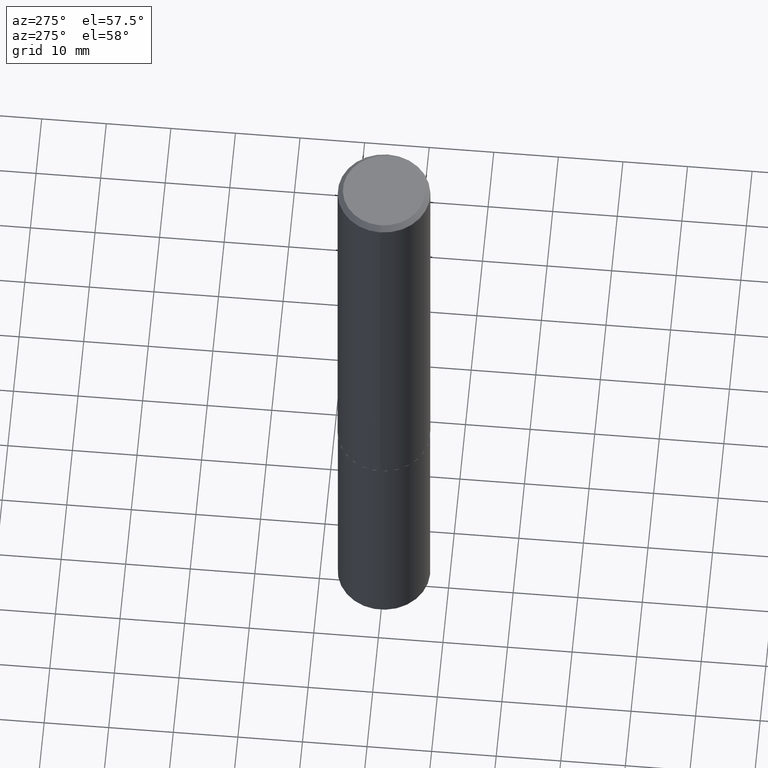
[diagram: clean part render]
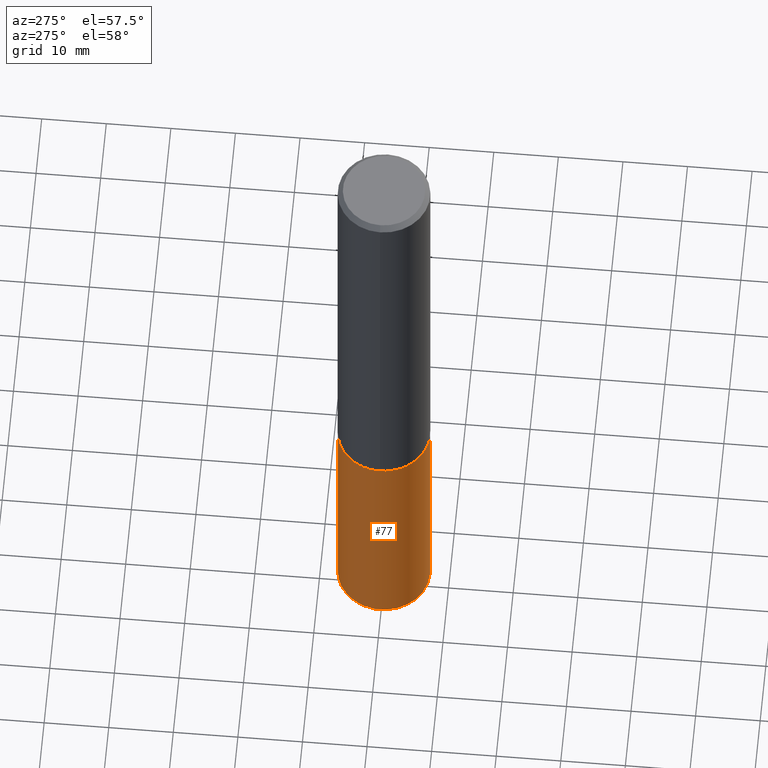
[diagram: same view with one face highlighted and labeled with its STEP entity id]
A machine part, auxiliary view. The second image highlights one B-rep face of the part: STEP entity #77.
In plain terms, the highlighted cylindrical surface (partial cylindrical patch) has radius 7.1501 mm, axis along (-0, 0, 1).
Its self-contained STEP definition (entity closure, byte-faithful):
#2 = CARTESIAN_POINT ( 'NONE',  ( 1.050222486221045995E-28, -1.499514380840898218E-14, -4.294672302330639901 ) ) ;
#7 = DIRECTION ( 'NONE',  ( -2.445301347483331542E-29, 3.491721149235287761E-15, 1.000000000000000000 ) ) ;
#15 = VERTEX_POINT ( 'NONE', #265 ) ;
#18 = FACE_OUTER_BOUND ( 'NONE', #88, .T. ) ;
#19 = CIRCLE ( 'NONE', #100, 0.2814999999999999725 ) ;
#39 = EDGE_CURVE ( 'NONE', #146, #83, #342, .T. ) ;
#47 = CARTESIAN_POINT ( 'NONE',  ( 2.000177801164748486E-15, 0.2814999999999904801, -2.728400000000001491 ) ) ;
#48 = CARTESIAN_POINT ( 'NONE',  ( -1.965703993768616963E-15, -0.2815000000000095204, -2.728399999999999270 ) ) ;
#77 = ADVANCED_FACE ( 'NONE', ( #18 ), #340, .T. ) ;
#83 = VERTEX_POINT ( 'NONE', #320 ) ;
#88 = EDGE_LOOP ( 'NONE', ( #114, #170, #389, #220 ) ) ;
#100 = AXIS2_PLACEMENT_3D ( 'NONE', #333, #374, #367 ) ;
#114 = ORIENTED_EDGE ( 'NONE', *, *, #136, .F. ) ;
#116 = AXIS2_PLACEMENT_3D ( 'NONE', #2, #7, #358 ) ;
#125 = DIRECTION ( 'NONE',  ( -2.445301347483331542E-29, 3.491721149235287367E-15, 1.000000000000000000 ) ) ;
#131 = DIRECTION ( 'NONE',  ( -2.445301347483331542E-29, 3.491721149235287761E-15, 1.000000000000000000 ) ) ;
#136 = EDGE_CURVE ( 'NONE', #146, #15, #258, .T. ) ;
#137 = VERTEX_POINT ( 'NONE', #48 ) ;
#146 = VERTEX_POINT ( 'NONE', #376 ) ;
#158 = DIRECTION ( 'NONE',  ( -6.982962677686265922E-15, -1.000000000000000000, 3.881844395970533976E-15 ) ) ;
#170 = ORIENTED_EDGE ( 'NONE', *, *, #39, .T. ) ;
#220 = ORIENTED_EDGE ( 'NONE', *, *, #279, .F. ) ;
#235 = CARTESIAN_POINT ( 'NONE',  ( -1.965703993768616963E-15, -0.2815000000000095204, -2.728399999999999270 ) ) ;
#249 = EDGE_CURVE ( 'NONE', #83, #137, #273, .T. ) ;
#258 = LINE ( 'NONE', #47, #372 ) ;
#262 = VECTOR ( 'NONE', #125, 39.37007874015748143 ) ;
#265 = CARTESIAN_POINT ( 'NONE',  ( 2.000177801164787141E-15, 0.2814999999999904801, -2.728400000000001491 ) ) ;
#273 = LINE ( 'NONE', #235, #262 ) ;
#279 = EDGE_CURVE ( 'NONE', #15, #137, #19, .T. ) ;
#311 = CARTESIAN_POINT ( 'NONE',  ( 6.672217090795527604E-29, -9.526157684899640905E-15, -2.728400000000000158 ) ) ;
#318 = AXIS2_PLACEMENT_3D ( 'NONE', #311, #131, #158 ) ;
#320 = CARTESIAN_POINT ( 'NONE',  ( -1.965703993768577914E-15, -0.2815000000000149050, -4.294672302330639013 ) ) ;
#333 = CARTESIAN_POINT ( 'NONE',  ( 6.672217090795527604E-29, -9.526157684899640905E-15, -2.728400000000000158 ) ) ;
#340 = CYLINDRICAL_SURFACE ( 'NONE', #318, 0.2814999999999999725 ) ;
#342 = CIRCLE ( 'NONE', #116, 0.2814999999999999725 ) ;
#358 = DIRECTION ( 'NONE',  ( -6.982962677686265922E-15, -1.000000000000000000, 3.881844395970533976E-15 ) ) ;
#367 = DIRECTION ( 'NONE',  ( -6.982962677686265922E-15, -1.000000000000000000, 3.881844395970533976E-15 ) ) ;
#372 = VECTOR ( 'NONE', #382, 39.37007874015748143 ) ;
#374 = DIRECTION ( 'NONE',  ( -2.445301347483331542E-29, 3.491721149235287761E-15, 1.000000000000000000 ) ) ;
#376 = CARTESIAN_POINT ( 'NONE',  ( 2.000177801164786352E-15, 0.2814999999999848734, -4.294672302330640790 ) ) ;
#382 = DIRECTION ( 'NONE',  ( -2.445301347483331542E-29, 3.491721149235287367E-15, 1.000000000000000000 ) ) ;
#389 = ORIENTED_EDGE ( 'NONE', *, *, #249, .T. ) ;